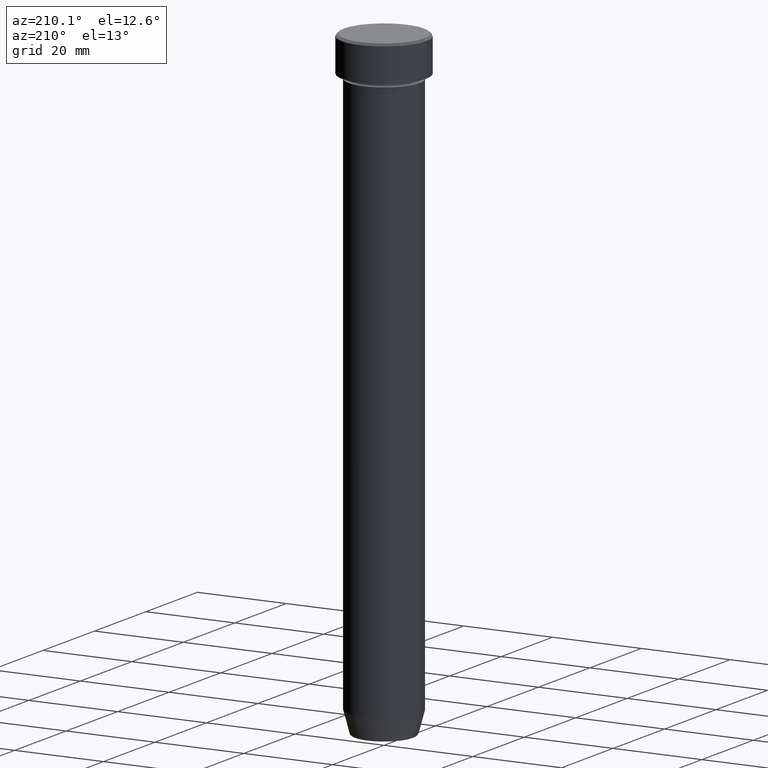
[diagram: clean part render]
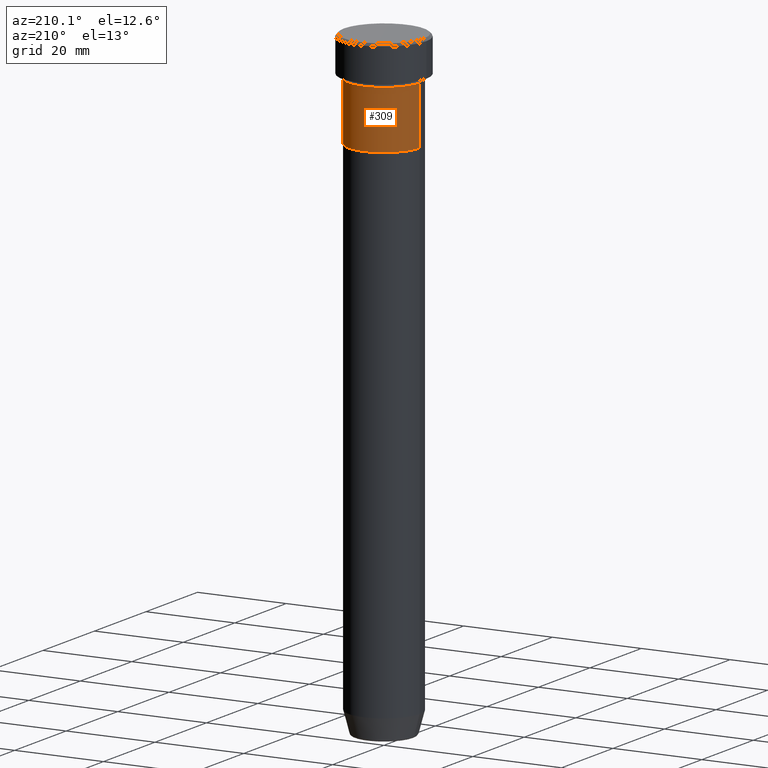
[diagram: same view with one face highlighted and labeled with its STEP entity id]
A machine part, auxiliary view. The second image highlights one B-rep face of the part: STEP entity #309.
In plain terms, the highlighted cylindrical surface (partial cylindrical patch) has radius 8 mm, axis along (-0, -0, 1).
Its self-contained STEP definition (entity closure, byte-faithful):
#6 = ORIENTED_EDGE ( 'NONE', *, *, #450, .T. ) ;
#24 = DIRECTION ( 'NONE',  ( -0.000000000000000000, -0.000000000000000000, 1.000000000000000000 ) ) ;
#31 = LINE ( 'NONE', #128, #307 ) ;
#58 = VERTEX_POINT ( 'NONE', #475 ) ;
#59 = CARTESIAN_POINT ( 'NONE',  ( 0.000000000000000000, 0.000000000000000000, 0.000000000000000000 ) ) ;
#85 = AXIS2_PLACEMENT_3D ( 'NONE', #59, #24, #379 ) ;
#87 = ORIENTED_EDGE ( 'NONE', *, *, #444, .F. ) ;
#96 = CARTESIAN_POINT ( 'NONE',  ( 0.000000000000000000, 0.000000000000000000, -9.000000000000001776 ) ) ;
#98 = VERTEX_POINT ( 'NONE', #464 ) ;
#127 = AXIS2_PLACEMENT_3D ( 'NONE', #169, #214, #587 ) ;
#128 = CARTESIAN_POINT ( 'NONE',  ( -8.000000000000000000, 9.797174393178825657E-16, 0.000000000000000000 ) ) ;
#169 = CARTESIAN_POINT ( 'NONE',  ( 0.000000000000000000, 0.000000000000000000, -22.00000000000000000 ) ) ;
#171 = CARTESIAN_POINT ( 'NONE',  ( 8.000000000000000000, 0.000000000000000000, -22.00000000000000000 ) ) ;
#180 = CIRCLE ( 'NONE', #523, 8.000000000000000000 ) ;
#182 = CARTESIAN_POINT ( 'NONE',  ( -8.000000000000000000, 9.797174393178825657E-16, -22.00000000000000000 ) ) ;
#184 = DIRECTION ( 'NONE',  ( 1.000000000000000000, 0.000000000000000000, 0.000000000000000000 ) ) ;
#193 = VERTEX_POINT ( 'NONE', #182 ) ;
#214 = DIRECTION ( 'NONE',  ( -0.000000000000000000, -0.000000000000000000, 1.000000000000000000 ) ) ;
#261 = CYLINDRICAL_SURFACE ( 'NONE', #85, 8.000000000000000000 ) ;
#289 = ORIENTED_EDGE ( 'NONE', *, *, #461, .T. ) ;
#293 = FACE_OUTER_BOUND ( 'NONE', #420, .T. ) ;
#307 = VECTOR ( 'NONE', #356, 1000.000000000000000 ) ;
#309 = ADVANCED_FACE ( 'NONE', ( #293 ), #261, .T. ) ;
#356 = DIRECTION ( 'NONE',  ( -0.000000000000000000, -0.000000000000000000, 1.000000000000000000 ) ) ;
#379 = DIRECTION ( 'NONE',  ( 1.000000000000000000, 0.000000000000000000, 0.000000000000000000 ) ) ;
#392 = CARTESIAN_POINT ( 'NONE',  ( 8.000000000000000000, 0.000000000000000000, 0.000000000000000000 ) ) ;
#400 = DIRECTION ( 'NONE',  ( -0.000000000000000000, -0.000000000000000000, 1.000000000000000000 ) ) ;
#402 = CIRCLE ( 'NONE', #127, 8.000000000000000000 ) ;
#420 = EDGE_LOOP ( 'NONE', ( #6, #289, #507, #87 ) ) ;
#442 = VERTEX_POINT ( 'NONE', #171 ) ;
#444 = EDGE_CURVE ( 'NONE', #442, #58, #483, .T. ) ;
#447 = DIRECTION ( 'NONE',  ( -0.000000000000000000, -0.000000000000000000, 1.000000000000000000 ) ) ;
#450 = EDGE_CURVE ( 'NONE', #442, #193, #402, .T. ) ;
#461 = EDGE_CURVE ( 'NONE', #193, #98, #31, .T. ) ;
#464 = CARTESIAN_POINT ( 'NONE',  ( -8.000000000000000000, 9.797174393178825657E-16, -9.000000000000001776 ) ) ;
#475 = CARTESIAN_POINT ( 'NONE',  ( 8.000000000000000000, 0.000000000000000000, -9.000000000000001776 ) ) ;
#483 = LINE ( 'NONE', #392, #585 ) ;
#507 = ORIENTED_EDGE ( 'NONE', *, *, #566, .F. ) ;
#523 = AXIS2_PLACEMENT_3D ( 'NONE', #96, #447, #184 ) ;
#566 = EDGE_CURVE ( 'NONE', #58, #98, #180, .T. ) ;
#585 = VECTOR ( 'NONE', #400, 1000.000000000000000 ) ;
#587 = DIRECTION ( 'NONE',  ( 1.000000000000000000, 0.000000000000000000, 0.000000000000000000 ) ) ;